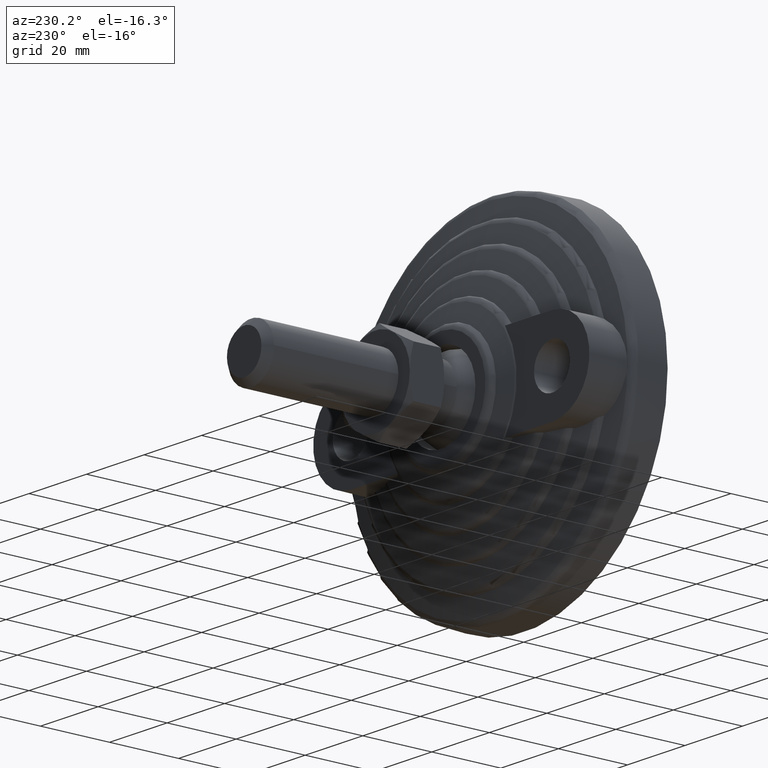
[diagram: clean part render]
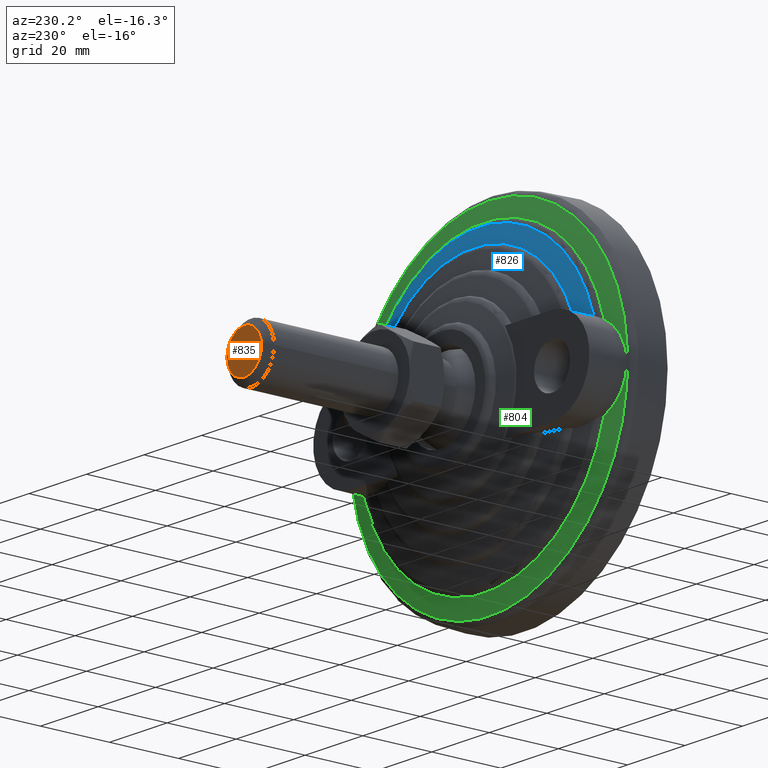
[diagram: same view with three faces highlighted in distinct colors, each labeled with its STEP entity id]
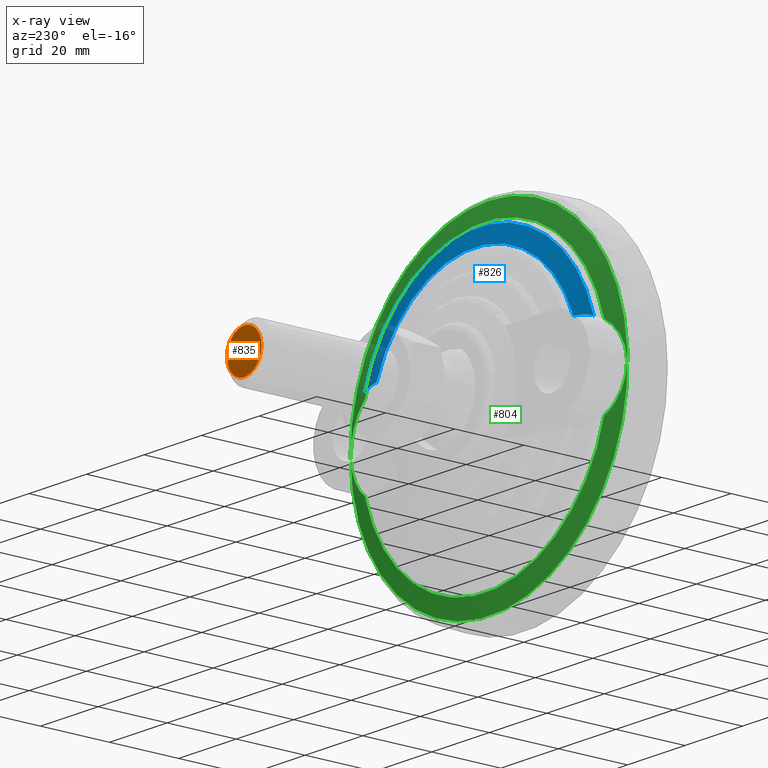
[diagram: x-ray of the same camera — body ghosted, the three highlighted faces saturated]
A machine part, auxiliary view with three faces highlighted in distinct colors.
The next image is the same camera in x-ray (body ghosted, the three faces saturated) — at least one of them is partly hidden behind the body in this view.
Their STEP definitions:

[orange] entity #835 — the highlighted planar face has unit normal (0, 1, 0).
#70=PLANE('',#992);
#154=FACE_OUTER_BOUND('',#206,.T.);
#206=EDGE_LOOP('',(#721));
#314=CIRCLE('',#991,6.);
#385=VERTEX_POINT('',#1667);
#502=EDGE_CURVE('',#385,#385,#314,.T.);
#721=ORIENTED_EDGE('',*,*,#502,.F.);
#835=ADVANCED_FACE('',(#154),#70,.T.);
#991=AXIS2_PLACEMENT_3D('',#1669,#1186,#1187);
#992=AXIS2_PLACEMENT_3D('',#1670,#1188,#1189);
#1186=DIRECTION('center_axis',(0.,-1.,0.));
#1187=DIRECTION('ref_axis',(-1.,0.,0.));
#1188=DIRECTION('center_axis',(0.,1.,0.));
#1189=DIRECTION('ref_axis',(0.,0.,1.));
#1667=CARTESIAN_POINT('',(6.,81.0000000000001,7.34788079488412E-16));
#1669=CARTESIAN_POINT('Origin',(0.,81.0000000000001,0.));
#1670=CARTESIAN_POINT('Origin',(-7.7553251033388E-16,81.0000000000001,1.15648231731787E-16));

[blue] entity #826 — the highlighted conical surface has half-angle 75.717 deg.
#37=(
BOUNDED_CURVE()
B_SPLINE_CURVE(2,(#1599,#1600,#1601),.UNSPECIFIED.,.F.,.F.)
B_SPLINE_CURVE_WITH_KNOTS((3,3),(4.58767072894616,5.43308129646651),
 .UNSPECIFIED.)
CURVE()
GEOMETRIC_REPRESENTATION_ITEM()
RATIONAL_B_SPLINE_CURVE((1.0006018128557,1.00035635711055,1.))
REPRESENTATION_ITEM('')
);
#40=(
BOUNDED_CURVE()
B_SPLINE_CURVE(2,(#1612,#1613,#1614),.UNSPECIFIED.,.F.,.F.)
B_SPLINE_CURVE_WITH_KNOTS((3,3),(0.,0.845410567520354),.UNSPECIFIED.)
CURVE()
GEOMETRIC_REPRESENTATION_ITEM()
RATIONAL_B_SPLINE_CURVE((1.,1.00035635711055,1.0006018128557))
REPRESENTATION_ITEM('')
);
#109=B_SPLINE_CURVE_WITH_KNOTS('',3,(#1570,#1571,#1572,#1573,#1574,#1575,
#1576,#1577),.UNSPECIFIED.,.F.,.F.,(4,2,2,4),(0.496035183508374,0.630719046331009,
0.946078569496514,0.978975324352635),.UNSPECIFIED.);
#111=B_SPLINE_CURVE_WITH_KNOTS('',3,(#1644,#1645,#1646,#1647,#1648,#1649,
#1650,#1651),.UNSPECIFIED.,.F.,.F.,(4,2,2,4),(4.02256413327761,4.05546088813373,
4.37082041129924,4.50550427412187),.UNSPECIFIED.);
#145=FACE_OUTER_BOUND('',#194,.T.);
#194=EDGE_LOOP('',(#682,#683,#684,#685,#686,#687));
#298=CIRCLE('',#951,36.607186177126);
#301=CIRCLE('',#956,41.588209564325);
#359=VERTEX_POINT('',#1462);
#360=VERTEX_POINT('',#1463);
#365=VERTEX_POINT('',#1513);
#366=VERTEX_POINT('',#1524);
#376=VERTEX_POINT('',#1569);
#381=VERTEX_POINT('',#1598);
#452=EDGE_CURVE('',#359,#360,#298,.T.);
#460=EDGE_CURVE('',#365,#366,#301,.T.);
#474=EDGE_CURVE('',#376,#366,#109,.T.);
#483=EDGE_CURVE('',#381,#359,#37,.T.);
#488=EDGE_CURVE('',#360,#376,#40,.T.);
#498=EDGE_CURVE('',#365,#381,#111,.T.);
#682=ORIENTED_EDGE('',*,*,#474,.T.);
#683=ORIENTED_EDGE('',*,*,#460,.F.);
#684=ORIENTED_EDGE('',*,*,#498,.T.);
#685=ORIENTED_EDGE('',*,*,#483,.T.);
#686=ORIENTED_EDGE('',*,*,#452,.T.);
#687=ORIENTED_EDGE('',*,*,#488,.T.);
#793=CONICAL_SURFACE('',#979,39.0976978707255,1.32151717609122);
#826=ADVANCED_FACE('',(#145),#793,.T.);
#951=AXIS2_PLACEMENT_3D('',#1464,#1094,#1095);
#956=AXIS2_PLACEMENT_3D('',#1525,#1104,#1105);
#979=AXIS2_PLACEMENT_3D('',#1653,#1161,#1162);
#1094=DIRECTION('center_axis',(0.,-1.,0.));
#1095=DIRECTION('ref_axis',(-1.,0.,0.));
#1104=DIRECTION('center_axis',(0.,-1.,0.));
#1105=DIRECTION('ref_axis',(-1.,0.,0.));
#1161=DIRECTION('center_axis',(0.,-1.,0.));
#1162=DIRECTION('ref_axis',(-1.,0.,0.));
#1462=CARTESIAN_POINT('',(34.2211349871212,14.1668780615259,13.));
#1463=CARTESIAN_POINT('',(-34.2211349871212,14.1668780615259,13.));
#1464=CARTESIAN_POINT('Origin',(0.,14.1668780615259,0.));
#1513=CARTESIAN_POINT('',(39.7939882109459,12.8988379473812,12.0837774322979));
#1524=CARTESIAN_POINT('',(-39.7939882109459,12.8988379473812,12.0837774322979));
#1525=CARTESIAN_POINT('Origin',(0.,12.8988379473812,0.));
#1569=CARTESIAN_POINT('',(-35.,13.9812620887692,13.));
#1570=CARTESIAN_POINT('Ctrl Pts',(-35.,13.9812620887692,13.));
#1571=CARTESIAN_POINT('Ctrl Pts',(-35.4556435306088,13.8725253564977,13.));
#1572=CARTESIAN_POINT('Ctrl Pts',(-35.9122835837928,13.7654229894468,12.9759927592604));
#1573=CARTESIAN_POINT('Ctrl Pts',(-37.4301435560571,13.4150174507364,12.8155494008206));
#1574=CARTESIAN_POINT('Ctrl Pts',(-38.4829316239188,13.1812992462495,12.5699606465207));
#1575=CARTESIAN_POINT('Ctrl Pts',(-39.5871327595158,12.943225011916,12.1643150522899));
#1576=CARTESIAN_POINT('Ctrl Pts',(-39.6908674155101,12.9209311403923,12.1246884702901));
#1577=CARTESIAN_POINT('Ctrl Pts',(-39.7939882109459,12.8988379473811,12.0837774322979));
#1598=CARTESIAN_POINT('',(35.,13.9812620887692,13.));
#1599=CARTESIAN_POINT('Ctrl Pts',(35.,13.9812620887692,13.));
#1600=CARTESIAN_POINT('Ctrl Pts',(34.6067274764783,14.0751143355964,13.));
#1601=CARTESIAN_POINT('Ctrl Pts',(34.2211349871212,14.1668780615259,13.));
#1612=CARTESIAN_POINT('Ctrl Pts',(-34.2211349871212,14.1668780615259,13.));
#1613=CARTESIAN_POINT('Ctrl Pts',(-34.6067274764783,14.0751143355964,13.));
#1614=CARTESIAN_POINT('Ctrl Pts',(-35.,13.9812620887692,13.));
#1644=CARTESIAN_POINT('Ctrl Pts',(39.7939882109459,12.8988379473811,12.0837774322979));
#1645=CARTESIAN_POINT('Ctrl Pts',(39.6908674155101,12.9209311403923,12.1246884702901));
#1646=CARTESIAN_POINT('Ctrl Pts',(39.5871327595157,12.943225011916,12.1643150522899));
#1647=CARTESIAN_POINT('Ctrl Pts',(38.4829316239188,13.1812992462495,12.5699606465207));
#1648=CARTESIAN_POINT('Ctrl Pts',(37.4301435560572,13.4150174507365,12.8155494008206));
#1649=CARTESIAN_POINT('Ctrl Pts',(35.9122835837928,13.7654229894468,12.9759927592604));
#1650=CARTESIAN_POINT('Ctrl Pts',(35.4556435306088,13.8725253564977,13.));
#1651=CARTESIAN_POINT('Ctrl Pts',(35.,13.9812620887692,13.));
#1653=CARTESIAN_POINT('Origin',(0.,13.5328580044535,0.));

[green] entity #804 — the highlighted conical surface has half-angle 75.718 deg.
#88=B_SPLINE_CURVE_WITH_KNOTS('',3,(#1264,#1265,#1266,#1267,#1268,#1269,
#1270,#1271,#1272,#1273,#1274,#1275),.UNSPECIFIED.,.F.,.F.,(4,2,2,2,2,4),
(2.50076852648819,2.81060137692785,3.1204342273675,3.43026707780716,3.74009992824682,
3.82645813405755),.UNSPECIFIED.);
#89=B_SPLINE_CURVE_WITH_KNOTS('',3,(#1279,#1280,#1281,#1282,#1283,#1284,
#1285,#1286,#1287,#1288,#1289,#1290),.UNSPECIFIED.,.F.,.F.,(4,2,2,2,2,4),
(1.17507891891882,1.26143712472955,1.57126997516921,1.88110282560887,2.19093567604853,
2.50076852648819),.UNSPECIFIED.);
#90=B_SPLINE_CURVE_WITH_KNOTS('',3,(#1292,#1293,#1294,#1295,#1296,#1297,
#1298,#1299,#1300,#1301,#1302,#1303),.UNSPECIFIED.,.F.,.F.,(4,2,2,2,2,4),
(2.50076852648819,2.81060137692785,3.1204342273675,3.43026707780716,3.74009992824682,
3.82645813405755),.UNSPECIFIED.);
#91=B_SPLINE_CURVE_WITH_KNOTS('',3,(#1306,#1307,#1308,#1309,#1310,#1311,
#1312,#1313,#1314,#1315,#1316,#1317),.UNSPECIFIED.,.F.,.F.,(4,2,2,2,2,4),
(1.17507891891882,1.26143712472955,1.57126997516921,1.88110282560887,2.19093567604853,
2.50076852648819),.UNSPECIFIED.);
#123=FACE_OUTER_BOUND('',#170,.T.);
#170=EDGE_LOOP('',(#547,#548,#549,#550,#551,#552,#553,#554,#555,#556));
#223=LINE('',#1262,#248);
#248=VECTOR('',#1038,45.6147297172013);
#276=CIRCLE('',#921,48.1776068577124);
#277=CIRCLE('',#922,48.1776068577124);
#278=CIRCLE('',#924,43.0518525766902);
#279=CIRCLE('',#925,43.0518525766902);
#325=VERTEX_POINT('',#1255);
#326=VERTEX_POINT('',#1257);
#327=VERTEX_POINT('',#1261);
#328=VERTEX_POINT('',#1263);
#329=VERTEX_POINT('',#1276);
#330=VERTEX_POINT('',#1278);
#331=VERTEX_POINT('',#1291);
#332=VERTEX_POINT('',#1304);
#414=EDGE_CURVE('',#325,#326,#276,.T.);
#415=EDGE_CURVE('',#326,#325,#277,.T.);
#416=EDGE_CURVE('',#326,#327,#223,.T.);
#417=EDGE_CURVE('',#327,#328,#88,.T.);
#418=EDGE_CURVE('',#328,#329,#278,.T.);
#419=EDGE_CURVE('',#329,#330,#89,.T.);
#420=EDGE_CURVE('',#330,#331,#90,.T.);
#421=EDGE_CURVE('',#331,#332,#279,.T.);
#422=EDGE_CURVE('',#332,#327,#91,.T.);
#547=ORIENTED_EDGE('',*,*,#415,.F.);
#548=ORIENTED_EDGE('',*,*,#416,.T.);
#549=ORIENTED_EDGE('',*,*,#417,.T.);
#550=ORIENTED_EDGE('',*,*,#418,.T.);
#551=ORIENTED_EDGE('',*,*,#419,.T.);
#552=ORIENTED_EDGE('',*,*,#420,.T.);
#553=ORIENTED_EDGE('',*,*,#421,.T.);
#554=ORIENTED_EDGE('',*,*,#422,.T.);
#555=ORIENTED_EDGE('',*,*,#416,.F.);
#556=ORIENTED_EDGE('',*,*,#414,.F.);
#791=CONICAL_SURFACE('',#923,45.6147297172013,1.3215212002045);
#804=ADVANCED_FACE('',(#123),#791,.T.);
#921=AXIS2_PLACEMENT_3D('',#1258,#1032,#1033);
#922=AXIS2_PLACEMENT_3D('',#1259,#1034,#1035);
#923=AXIS2_PLACEMENT_3D('',#1260,#1036,#1037);
#924=AXIS2_PLACEMENT_3D('',#1277,#1039,#1040);
#925=AXIS2_PLACEMENT_3D('',#1305,#1041,#1042);
#1032=DIRECTION('center_axis',(0.,-1.,0.));
#1033=DIRECTION('ref_axis',(-1.,0.,0.));
#1034=DIRECTION('center_axis',(0.,-1.,0.));
#1035=DIRECTION('ref_axis',(-1.,0.,0.));
#1036=DIRECTION('center_axis',(0.,-1.,0.));
#1037=DIRECTION('ref_axis',(-1.,0.,0.));
#1038=DIRECTION('',(-0.969091503693066,0.246701555467151,-1.18679480807861E-16));
#1039=DIRECTION('center_axis',(0.,-1.,0.));
#1040=DIRECTION('ref_axis',(-1.,0.,0.));
#1041=DIRECTION('center_axis',(0.,-1.,0.));
#1042=DIRECTION('ref_axis',(-1.,0.,0.));
#1255=CARTESIAN_POINT('',(-5.90005520288771E-15,10.0756982542326,48.1776068577124));
#1257=CARTESIAN_POINT('',(48.1776068577124,10.0756982542326,5.89986034699112E-15));
#1258=CARTESIAN_POINT('Origin',(0.,10.0756982542326,0.));
#1259=CARTESIAN_POINT('Origin',(0.,10.0756982542326,0.));
#1260=CARTESIAN_POINT('Origin',(0.,10.7281297063977,0.));
#1261=CARTESIAN_POINT('',(48.,10.1209116194229,1.77332107331729E-15));
#1262=CARTESIAN_POINT('',(45.6147297172013,10.7281297063977,5.58619327421422E-15));
#1263=CARTESIAN_POINT('',(41.5637430040724,11.3805611585628,11.2212868146434));
#1264=CARTESIAN_POINT('Ctrl Pts',(48.,10.1209116194229,-2.56739074444567E-15));
#1265=CARTESIAN_POINT('Ctrl Pts',(48.,10.1209116194229,1.03277616813219));
#1266=CARTESIAN_POINT('Ctrl Pts',(47.8750723305159,10.1440297672103,2.08945378100524));
#1267=CARTESIAN_POINT('Ctrl Pts',(47.363613071339,10.2395226315442,4.15624547417785));
#1268=CARTESIAN_POINT('Ctrl Pts',(46.9772306714295,10.3118800012724,5.16639727235595));
#1269=CARTESIAN_POINT('Ctrl Pts',(45.9708852446813,10.5031685635462,7.05587648913133));
#1270=CARTESIAN_POINT('Ctrl Pts',(45.3497258188676,10.6223637430668,7.93742472407508));
#1271=CARTESIAN_POINT('Ctrl Pts',(43.9299405594507,10.9004885845797,9.50661335031415));
#1272=CARTESIAN_POINT('Ctrl Pts',(43.1312060660086,11.0595112082074,10.19413894535));
#1273=CARTESIAN_POINT('Ctrl Pts',(42.0529195175997,11.2796811233958,10.9241423895563));
#1274=CARTESIAN_POINT('Ctrl Pts',(41.8112975847212,11.3293276299164,11.0764830435876));
#1275=CARTESIAN_POINT('Ctrl Pts',(41.5637430040724,11.3805611585628,11.2212868146434));
#1276=CARTESIAN_POINT('',(-41.5637430040724,11.3805611585628,11.2212868146434));
#1277=CARTESIAN_POINT('Origin',(0.,11.3805611585628,0.));
#1278=CARTESIAN_POINT('',(-48.,10.1209116194229,-1.74556549770166E-15));
#1279=CARTESIAN_POINT('Ctrl Pts',(-41.5637430040724,11.3805611585628,11.2212868146434));
#1280=CARTESIAN_POINT('Ctrl Pts',(-41.8112975847212,11.3293276299164,11.0764830435876));
#1281=CARTESIAN_POINT('Ctrl Pts',(-42.0529195175997,11.2796811233958,10.9241423895563));
#1282=CARTESIAN_POINT('Ctrl Pts',(-43.1312060660086,11.0595112082074,10.19413894535));
#1283=CARTESIAN_POINT('Ctrl Pts',(-43.9299405594507,10.9004885845797,9.50661335031416));
#1284=CARTESIAN_POINT('Ctrl Pts',(-45.3497258188676,10.6223637430668,7.93742472407509));
#1285=CARTESIAN_POINT('Ctrl Pts',(-45.9708852446813,10.5031685635462,7.05587648913134));
#1286=CARTESIAN_POINT('Ctrl Pts',(-46.9772306714295,10.3118800012724,5.16639727235596));
#1287=CARTESIAN_POINT('Ctrl Pts',(-47.363613071339,10.2395226315442,4.15624547417786));
#1288=CARTESIAN_POINT('Ctrl Pts',(-47.8750723305159,10.1440297672103,2.08945378100525));
#1289=CARTESIAN_POINT('Ctrl Pts',(-48.,10.1209116194229,1.0327761681322));
#1290=CARTESIAN_POINT('Ctrl Pts',(-48.,10.1209116194229,2.56739074444567E-15));
#1291=CARTESIAN_POINT('',(-41.5637430040724,11.3805611585628,-11.2212868146434));
#1292=CARTESIAN_POINT('Ctrl Pts',(-48.,10.1209116194229,2.56739074444567E-15));
#1293=CARTESIAN_POINT('Ctrl Pts',(-48.,10.1209116194229,-1.03277616813219));
#1294=CARTESIAN_POINT('Ctrl Pts',(-47.8750723305159,10.1440297672103,-2.08945378100524));
#1295=CARTESIAN_POINT('Ctrl Pts',(-47.363613071339,10.2395226315442,-4.15624547417785));
#1296=CARTESIAN_POINT('Ctrl Pts',(-46.9772306714295,10.3118800012724,-5.16639727235595));
#1297=CARTESIAN_POINT('Ctrl Pts',(-45.9708852446814,10.5031685635462,-7.05587648913133));
#1298=CARTESIAN_POINT('Ctrl Pts',(-45.3497258188676,10.6223637430668,-7.93742472407508));
#1299=CARTESIAN_POINT('Ctrl Pts',(-43.9299405594507,10.9004885845797,-9.50661335031415));
#1300=CARTESIAN_POINT('Ctrl Pts',(-43.1312060660086,11.0595112082074,-10.19413894535));
#1301=CARTESIAN_POINT('Ctrl Pts',(-42.0529195175997,11.2796811233958,-10.9241423895563));
#1302=CARTESIAN_POINT('Ctrl Pts',(-41.8112975847212,11.3293276299164,-11.0764830435876));
#1303=CARTESIAN_POINT('Ctrl Pts',(-41.5637430040724,11.3805611585628,-11.2212868146434));
#1304=CARTESIAN_POINT('',(41.5637430040724,11.3805611585628,-11.2212868146434));
#1305=CARTESIAN_POINT('Origin',(0.,11.3805611585628,0.));
#1306=CARTESIAN_POINT('Ctrl Pts',(41.5637430040724,11.3805611585628,-11.2212868146434));
#1307=CARTESIAN_POINT('Ctrl Pts',(41.8112975847212,11.3293276299164,-11.0764830435876));
#1308=CARTESIAN_POINT('Ctrl Pts',(42.0529195175997,11.2796811233958,-10.9241423895563));
#1309=CARTESIAN_POINT('Ctrl Pts',(43.1312060660086,11.0595112082074,-10.19413894535));
#1310=CARTESIAN_POINT('Ctrl Pts',(43.9299405594507,10.9004885845797,-9.50661335031416));
#1311=CARTESIAN_POINT('Ctrl Pts',(45.3497258188676,10.6223637430668,-7.93742472407508));
#1312=CARTESIAN_POINT('Ctrl Pts',(45.9708852446814,10.5031685635462,-7.05587648913134));
#1313=CARTESIAN_POINT('Ctrl Pts',(46.9772306714295,10.3118800012724,-5.16639727235595));
#1314=CARTESIAN_POINT('Ctrl Pts',(47.363613071339,10.2395226315442,-4.15624547417785));
#1315=CARTESIAN_POINT('Ctrl Pts',(47.8750723305159,10.1440297672103,-2.08945378100525));
#1316=CARTESIAN_POINT('Ctrl Pts',(48.,10.1209116194229,-1.0327761681322));
#1317=CARTESIAN_POINT('Ctrl Pts',(48.,10.1209116194229,-2.56739074444567E-15));